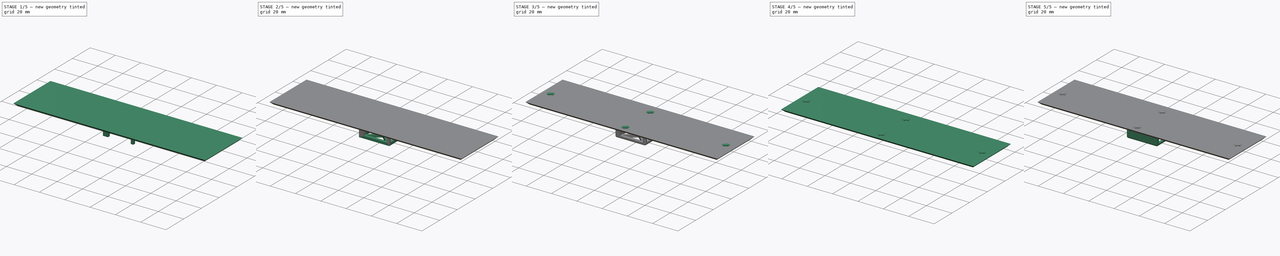
[diagram: build sequence overview — one tinted view per stage of 5, left to right]
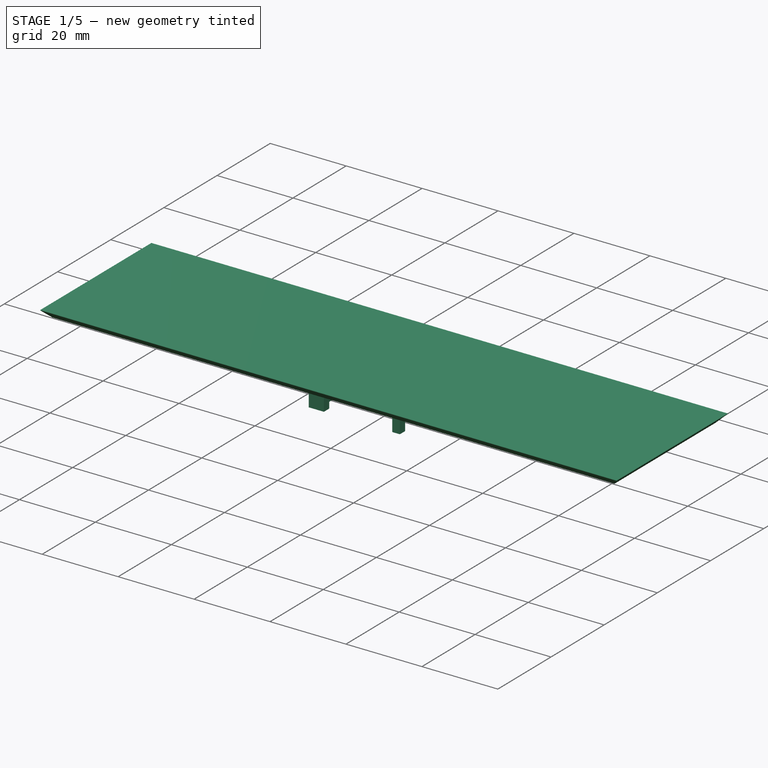
[diagram: stage 1 of 5 — iso view after this stage's code; geometry added in this stage tinted green]
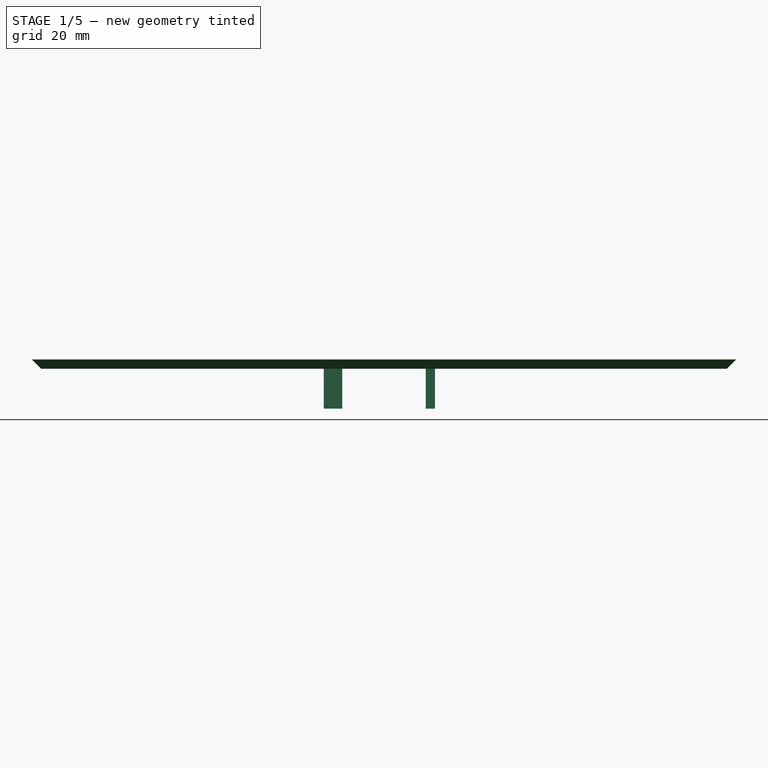
[diagram: stage 1 of 5 — front view after this stage's code; geometry added in this stage tinted green]
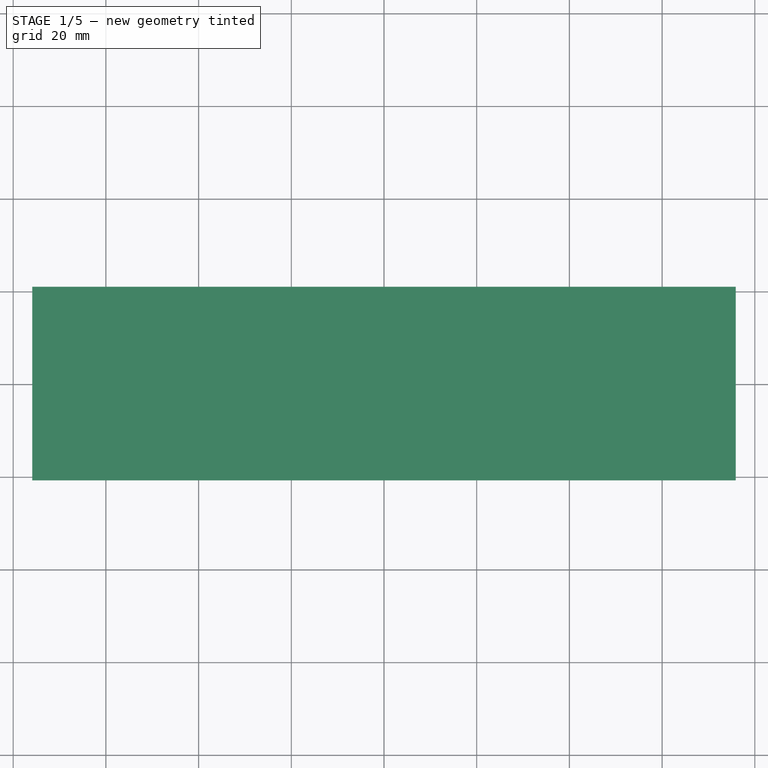
[diagram: stage 1 of 5 — top view after this stage's code; geometry added in this stage tinted green]
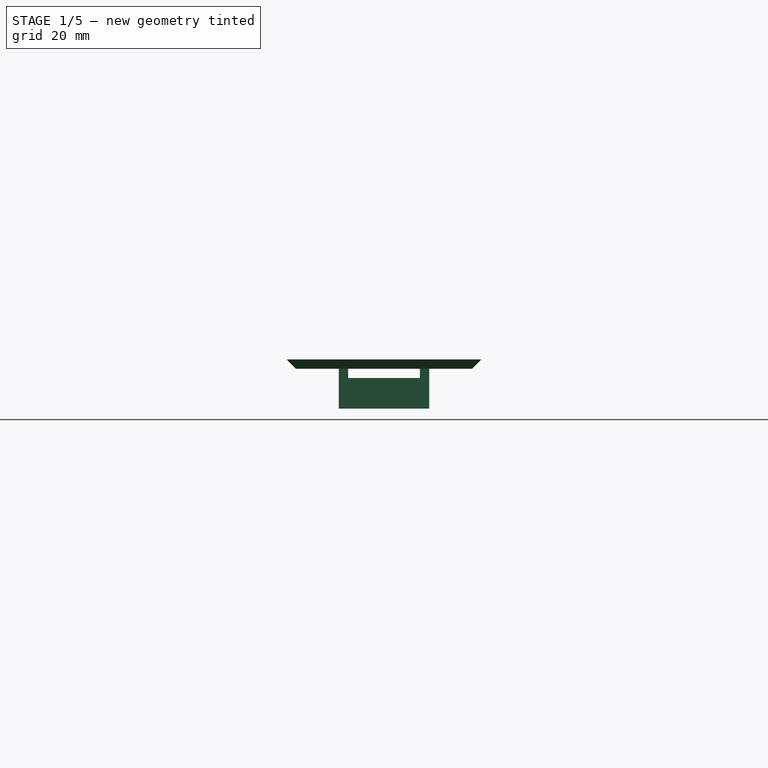
[diagram: stage 1 of 5 — right view after this stage's code; geometry added in this stage tinted green]
FCSTD DOCUMENT  (FreeCAD 0.20R29603 (Git))
Label: Tampa entrada de amostra
License: All rights reserved
LicenseURL: http://en.wikipedia.org/wiki/All_rights_reserved
objects: Sketcher::SketchObject×12, PartDesign::Pocket×7, PartDesign::Pad×5, PartDesign::Chamfer×3, PartDesign::Fillet×3, PartDesign::Body×1
note: 49 computed .brp shape members not serialized (recipe doc carries the construction recipe); baked Part::Feature solids carry a one-line shape summary decoded from their .brp

FEATURE [Sketcher::SketchObject] Sketch
  FullyConstrained = true
  MapMode = 5
  Support = -> [XY_Plane]
  sketch-geometry (5):
    g0: LineSegment StartX=75.9 StartY=-20.9 StartZ=0 EndX=75.9 EndY=20.9 EndZ=0
    g1: LineSegment StartX=75.9 StartY=20.9 StartZ=0 EndX=-75.9 EndY=20.9 EndZ=0
    g2: LineSegment StartX=-75.9 StartY=20.9 StartZ=0 EndX=-75.9 EndY=-20.9 EndZ=0
    g3: LineSegment StartX=-75.9 StartY=-20.9 StartZ=0 EndX=75.9 EndY=-20.9 EndZ=0
    g4: GeomPoint X=0 Y=0 Z=0
  constraints (12):
    c: Coincident(g0,g1)
    c: Coincident(g1,g2)
    c: Coincident(g2,g3)
    c: Coincident(g3,g0)
    c: Horizontal(g1)
    c: Horizontal(g3)
    c: Vertical(g0)
    c: Vertical(g2)
    c: Symmetric(g1,g0,g4)
    c: Coincident(g4,g-1)
    c: DistanceX(g1,g1) = 151.8
    c: DistanceY(g2,g2) = 41.8
FEATURE [PartDesign::Pad] Pad
  Direction = (0,0,1)
  Length = 2
  Length2 = 10
  Profile = -> Sketch
  ReferenceAxis = -> Sketch [N_Axis]
  Type = 0
FEATURE [PartDesign::Chamfer] Chamfer
  Angle = 45
  Base = -> Pad [Edge11,Edge9,Edge6,Edge3]
  BaseFeature = -> Pad
  ChamferType = 0
  FlipDirection = false
  Size = 1.9
  Size2 = 1
  SupportTransform = false
  UseAllEdges = false
FEATURE [Sketcher::SketchObject] Sketch001
  FullyConstrained = true
  MapMode = 5
  Placement = pos=(0,0,0) rot=(1,0,0;3.14159rad)
  Support = -> [Chamfer]
  sketch-geometry (21):
    g0: LineSegment StartX=11 StartY=-7.75 StartZ=0 EndX=11 EndY=7.75 EndZ=0
    g1: LineSegment StartX=11 StartY=7.75 StartZ=0 EndX=-11 EndY=7.75 EndZ=0
    g2: LineSegment StartX=-11 StartY=7.75 StartZ=0 EndX=-11 EndY=-7.75 EndZ=0
    g3: LineSegment StartX=-11 StartY=-7.75 StartZ=0 EndX=11 EndY=-7.75 EndZ=0
    g4: GeomPoint X=0 Y=0 Z=0
    g5: LineSegment StartX=-11 StartY=7.75 StartZ=0 EndX=-9 EndY=7.75 EndZ=0
    g6: LineSegment StartX=-9 StartY=7.75 StartZ=0 EndX=-9 EndY=9.75 EndZ=0
    g7: LineSegment StartX=-9 StartY=9.75 StartZ=0 EndX=-13 EndY=9.75 EndZ=0
    g8: LineSegment StartX=11 StartY=7.75 StartZ=0 EndX=9 EndY=7.75 EndZ=0
    g9: LineSegment StartX=9 StartY=7.75 StartZ=0 EndX=9 EndY=9.75 EndZ=0
    g10: LineSegment StartX=9 StartY=9.75 StartZ=0 EndX=11 EndY=9.75 EndZ=0
    g11: LineSegment StartX=11 StartY=9.75 StartZ=0 EndX=11 EndY=7.75 EndZ=0
    g12: LineSegment StartX=-11 StartY=-7.75 StartZ=0 EndX=-9 EndY=-7.75 EndZ=0
    g13: LineSegment StartX=-9 StartY=-7.75 StartZ=0 EndX=-9 EndY=-9.75 EndZ=0
    g14: LineSegment StartX=-9 StartY=-9.75 StartZ=0 EndX=-13 EndY=-9.75 EndZ=0
    g15: LineSegment StartX=11 StartY=-7.75 StartZ=0 EndX=9 EndY=-7.75 EndZ=0
    g16: LineSegment StartX=9 StartY=-7.75 StartZ=0 EndX=9 EndY=-9.75 EndZ=0
    g17: LineSegment StartX=9 StartY=-9.75 StartZ=0 EndX=11 EndY=-9.75 EndZ=0
    g18: LineSegment StartX=11 StartY=-9.75 StartZ=0 EndX=11 EndY=-7.75 EndZ=0
    g19: LineSegment StartX=-13 StartY=9.75 StartZ=0 EndX=-13 EndY=-9.75 EndZ=0
    g20: LineSegment StartX=-11 StartY=7.75 StartZ=0 EndX=-11 EndY=-7.75 EndZ=0
  constraints (56):
    c: Coincident(g0,g1)
    c: Coincident(g1,g2)
    c: Coincident(g2,g3)
    c: Coincident(g3,g0)
    c: Horizontal(g1)
    c: Horizontal(g3)
    c: Vertical(g0)
    c: Vertical(g2)
    c: Symmetric(g1,g0,g4)
    c: Coincident(g4,g-1)
    c: DistanceY(g0,g0) = 15.5
    c: DistanceX(g1,g1) = 22
    c: Coincident(g5,g6)
    c: Coincident(g6,g7)
    c: Horizontal(g5)
    c: Horizontal(g7)
    c: Vertical(g6)
    c: Coincident(g5,g1)
    c: Coincident(g8,g9)
    c: Coincident(g9,g10)
    c: Coincident(g10,g11)
    c: Coincident(g11,g8)
    c: Horizontal(g8)
    c: Horizontal(g10)
    c: Vertical(g9)
    c: Vertical(g11)
    c: Coincident(g8,g0)
    c: Coincident(g12,g13)
    c: Coincident(g13,g14)
    c: Horizontal(g12)
    c: Horizontal(g14)
    c: Vertical(g13)
    c: Coincident(g12,g2)
    c: Coincident(g15,g16)
    c: Coincident(g16,g17)
    c: Coincident(g17,g18)
    c: Coincident(g18,g15)
    c: Horizontal(g15)
    c: Horizontal(g17)
    c: Vertical(g16)
    c: Vertical(g18)
    c: Coincident(g15,g0)
    c: Equal(g10,g15)
    c: Equal(g15,g12)
    c: Equal(g12,g13)
    c: Equal(g13,g16)
    c: Equal(g16,g9)
    c: Equal(g9,g6)
    c: Vertical(g19)
    c: Coincident(g20,g5)
    c: Coincident(g20,g12)
    c: Equal(g5,g6)
    c: Coincident(g7,g19)
    c: Coincident(g14,g19)
    c: DistanceY(g6,g6) = 2
    c: DistanceX(g14,g12) = 2
FEATURE [PartDesign::Pad] Pad001
  BaseFeature = -> Chamfer
  Direction = (0,0,-1)
  Length = 8.6
  Length2 = 10
  Profile = -> Sketch001
  ReferenceAxis = -> Sketch001 [N_Axis]
  Type = 0
FEATURE [Sketcher::SketchObject] Sketch002
  FullyConstrained = true
  MapMode = 5
  Placement = pos=(-13,0,0) rot=(0.57735,-0.57735,-0.57735;2.0944rad)
  Support = -> [Pad001]
  sketch-geometry (4):
    g0: LineSegment StartX=-7.75 StartY=0 StartZ=0 EndX=7.75 EndY=0 EndZ=0
    g1: LineSegment StartX=7.75 StartY=0 StartZ=0 EndX=7.75 EndY=-2 EndZ=0
    g2: LineSegment StartX=7.75 StartY=-2 StartZ=0 EndX=-7.75 EndY=-2 EndZ=0
    g3: LineSegment StartX=-7.75 StartY=-2 StartZ=0 EndX=-7.75 EndY=0 EndZ=0
  constraints (11):
    c: Coincident(g0,g1)
    c: Coincident(g1,g2)
    c: Coincident(g2,g3)
    c: Coincident(g3,g0)
    c: Horizontal(g0)
    c: Horizontal(g2)
    c: Vertical(g1)
    c: Vertical(g3)
    c: DistanceX(g0,g0) = 15.5
    c: DistanceY(g1,g1) = 2
    c: Symmetric(g0,g0,g-1)
FEATURE [PartDesign::Pocket] Pocket
  BaseFeature = -> Pad001
  Direction = (1,0,0)
  Length = 2
  Length2 = 5
  Profile = -> Sketch002
  ReferenceAxis = -> Sketch002 [N_Axis]
  Type = 0
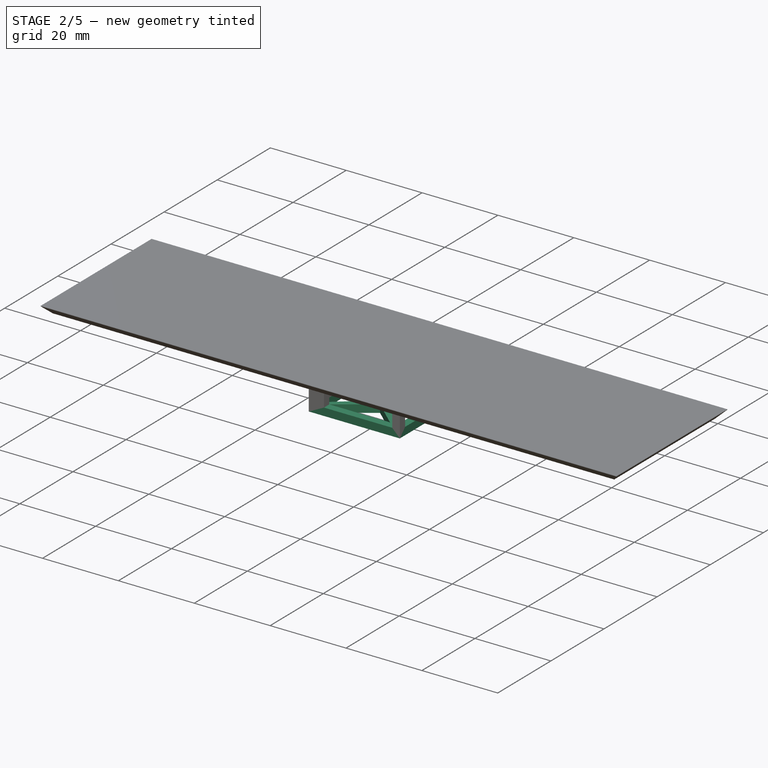
[diagram: stage 2 of 5 — iso view after this stage's code; geometry added in this stage tinted green]
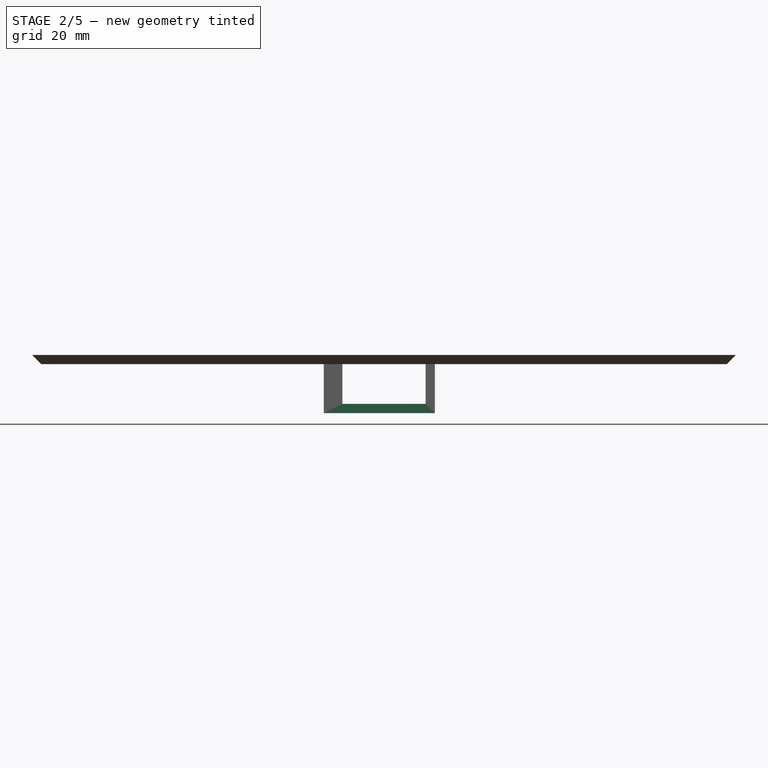
[diagram: stage 2 of 5 — front view after this stage's code; geometry added in this stage tinted green]
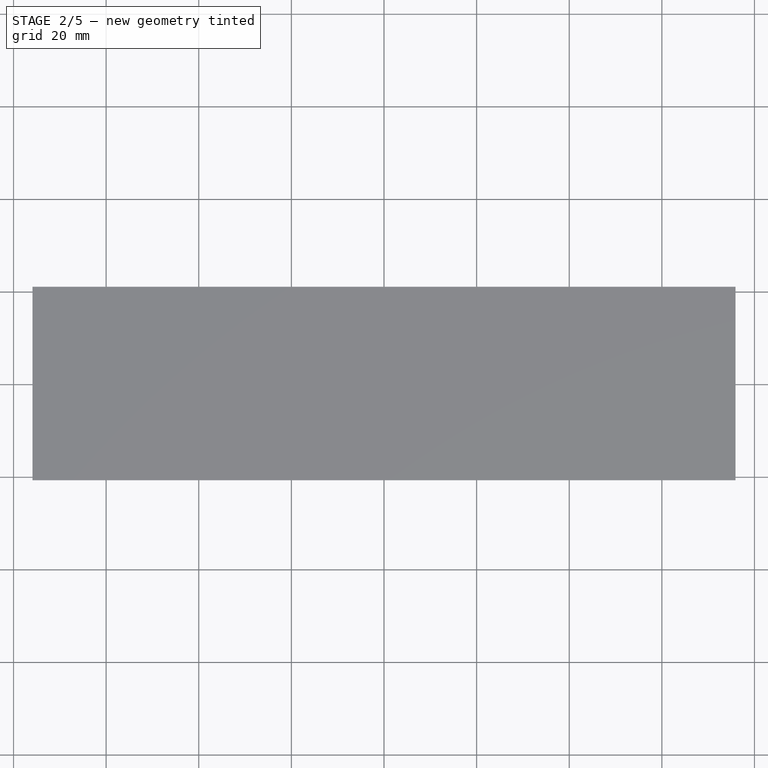
[diagram: stage 2 of 5 — top view after this stage's code; geometry added in this stage tinted green]
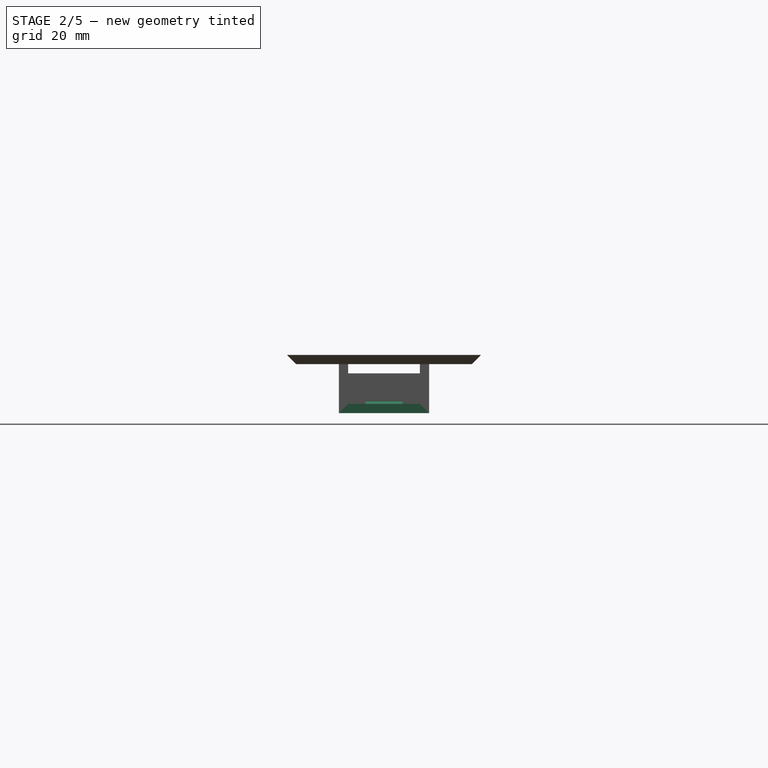
[diagram: stage 2 of 5 — right view after this stage's code; geometry added in this stage tinted green]
FEATURE [Sketcher::SketchObject] Sketch003
  ExternalGeometry = -> [Pocket]
  FullyConstrained = true
  MapMode = 5
  Placement = pos=(0,0,-8.6) rot=(1,0,0;3.14159rad)
  Support = -> [Pocket]
  sketch-geometry (22):
    g0: LineSegment StartX=-13 StartY=9.75 StartZ=0 EndX=11 EndY=9.75 EndZ=0
    g1: LineSegment StartX=11 StartY=-9.75 StartZ=0 EndX=-13 EndY=-9.75 EndZ=0
    g2: LineSegment StartX=-13 StartY=-9.75 StartZ=0 EndX=-13 EndY=9.75 EndZ=0
    g3: LineSegment StartX=-11 StartY=7.75 StartZ=0 EndX=-1.5 EndY=0 EndZ=0
    g4: LineSegment StartX=-1.5 StartY=0 StartZ=0 EndX=-11 EndY=-7.75 EndZ=0
    g5: LineSegment StartX=-11 StartY=-7.75 StartZ=0 EndX=-11 EndY=7.75 EndZ=0
    g6: LineSegment StartX=9 StartY=7.75 StartZ=0 EndX=1.5 EndY=9e-16 EndZ=0
    g7: LineSegment StartX=1.5 StartY=9e-16 StartZ=0 EndX=9 EndY=-7.75 EndZ=0
    g8: LineSegment StartX=7 StartY=-7.75 StartZ=0 EndX=-1.8e-15 EndY=-1.5 EndZ=0
    g9: LineSegment StartX=-1.8e-15 StartY=-1.5 StartZ=0 EndX=-9 EndY=-7.75 EndZ=0
    g10: LineSegment StartX=-9 StartY=-7.75 StartZ=0 EndX=9 EndY=-7.75 EndZ=0
    g11: LineSegment StartX=9 StartY=7.75 StartZ=0 EndX=-9 EndY=7.75 EndZ=0
    g12: LineSegment StartX=-9 StartY=7.75 StartZ=0 EndX=0 EndY=1.5 EndZ=0
    g13: LineSegment StartX=-1.5 StartY=0 StartZ=0 EndX=1.5 EndY=9e-16 EndZ=0
    g14: LineSegment StartX=0 StartY=1.5 StartZ=0 EndX=-1.8e-15 EndY=-1.5 EndZ=0
    g15: LineSegment StartX=7 StartY=-7.75 StartZ=0 EndX=9 EndY=-7.75 EndZ=0
    g16: LineSegment StartX=0 StartY=1.5 StartZ=0 EndX=7 EndY=7.75 EndZ=0
    g17: LineSegment StartX=7 StartY=7.75 StartZ=0 EndX=9 EndY=7.75 EndZ=0
    g18: LineSegment StartX=-9 StartY=7.75 StartZ=0 EndX=7 EndY=7.75 EndZ=0
    g19: LineSegment StartX=7 StartY=-7.75 StartZ=0 EndX=-9 EndY=-7.75 EndZ=0
    g20: LineSegment StartX=9 StartY=7.75 StartZ=0 EndX=9 EndY=-7.75 EndZ=0
    g21: LineSegment StartX=11 StartY=-9.75 StartZ=0 EndX=11 EndY=9.75 EndZ=0
  constraints (49):
    c: Coincident(g1,g2)
    c: Coincident(g2,g0)
    c: Horizontal(g1)
    c: Vertical(g2)
    c: Coincident(g0,g-3)
    c: Coincident(g-8,g3)
    c: PointOnObject(g3,g-1)
    c: Coincident(g3,g4)
    c: Coincident(g4,g-9)
    c: Coincident(g4,g5)
    c: Coincident(g5,g3)
    c: Coincident(g6,g7)
    c: PointOnObject(g8,g-2)
    c: Coincident(g8,g9)
    c: Coincident(g9,g-9)
    c: Coincident(g9,g10)
    c: Coincident(g-10,g11)
    c: Coincident(g11,g-8)
    c: Coincident(g11,g12)
    c: Coincident(g13,g3)
    c: Coincident(g13,g6)
    c: Coincident(g14,g12)
    c: Coincident(g14,g8)
    c: Equal(g13,g14)
    c: Symmetric(g3,g6,g-1)
    c: Symmetric(g12,g8,g-1)
    c: DistanceX(g13,g13) = 3
    c: Coincident(g1,g-5)
    c: Coincident(g0,g-4)
    c: Coincident(g10,g-7)
    c: PointOnObject(g8,g10)
    c: Coincident(g7,g10)
    c: Coincident(g6,g11)
    c: Coincident(g15,g8)
    c: Equal(g15,g-9)
    c: Coincident(g15,g7)
    c: Coincident(g16,g12)
    c: Coincident(g17,g16)
    c: Horizontal(g17)
    c: Equal(g17,g-9)
    c: Coincident(g17,g6)
    c: Coincident(g18,g12)
    c: Coincident(g18,g16)
    c: Coincident(g19,g8)
    c: Coincident(g19,g9)
    c: Coincident(g20,g6)
    c: Coincident(g20,g7)
    c: Coincident(g21,g1)
    c: Coincident(g21,g0)
FEATURE [PartDesign::Pad] Pad002
  BaseFeature = -> Pocket
  Direction = (0,0,-1)
  Length = 2
  Length2 = 10
  Profile = -> Sketch003
  ReferenceAxis = -> Sketch003 [N_Axis]
  Refine = true
  Type = 0
FEATURE [Sketcher::SketchObject] Sketch004
  ExternalGeometry = -> [Pad002]
  FullyConstrained = true
  MapMode = 5
  Placement = pos=(11,0,-1.5e-15) rot=(0.57735,0.57735,0.57735;2.0944rad)
  Support = -> [Pad002]
  sketch-geometry (5):
    g0: LineSegment StartX=4 StartY=-8 StartZ=0 EndX=4 EndY=-8.6 EndZ=0
    g1: LineSegment StartX=4 StartY=-8.6 StartZ=0 EndX=-4 EndY=-8.6 EndZ=0
    g2: LineSegment StartX=-4 StartY=-8.6 StartZ=0 EndX=-4 EndY=-8 EndZ=0
    g3: LineSegment StartX=-4 StartY=-8 StartZ=0 EndX=4 EndY=-8 EndZ=0
    g4: GeomPoint X=0 Y=-8.3 Z=0
  constraints (14):
    c: DistanceY(g-4,g-4) = 8.6
    c: Coincident(g0,g1)
    c: Coincident(g1,g2)
    c: Coincident(g2,g3)
    c: Coincident(g3,g0)
    c: Horizontal(g1)
    c: Horizontal(g3)
    c: Vertical(g0)
    c: Vertical(g2)
    c: Symmetric(g1,g0,g4)
    c: PointOnObject(g4,g-2)
    c: PointOnObject(g0,g-3)
    c: DistanceY(g0,g0) = 0.6
    c: DistanceX(g3,g3) = 8
FEATURE [PartDesign::Pad] Pad003
  BaseFeature = -> Pad002
  Direction = (1,1e-16,-1e-16)
  Length = 1.25
  Length2 = -0.75
  Profile = -> Sketch004
  ReferenceAxis = -> Sketch004 [N_Axis]
  Reversed = true
  Type = 4
FEATURE [PartDesign::Chamfer] Chamfer001
  Angle = 53
  Base = -> Pad003 [Edge111,Edge109]
  BaseFeature = -> Pad003
  ChamferType = 2
  FlipDirection = true
  Size = 0.55
  Size2 = 1
  SupportTransform = false
  UseAllEdges = false
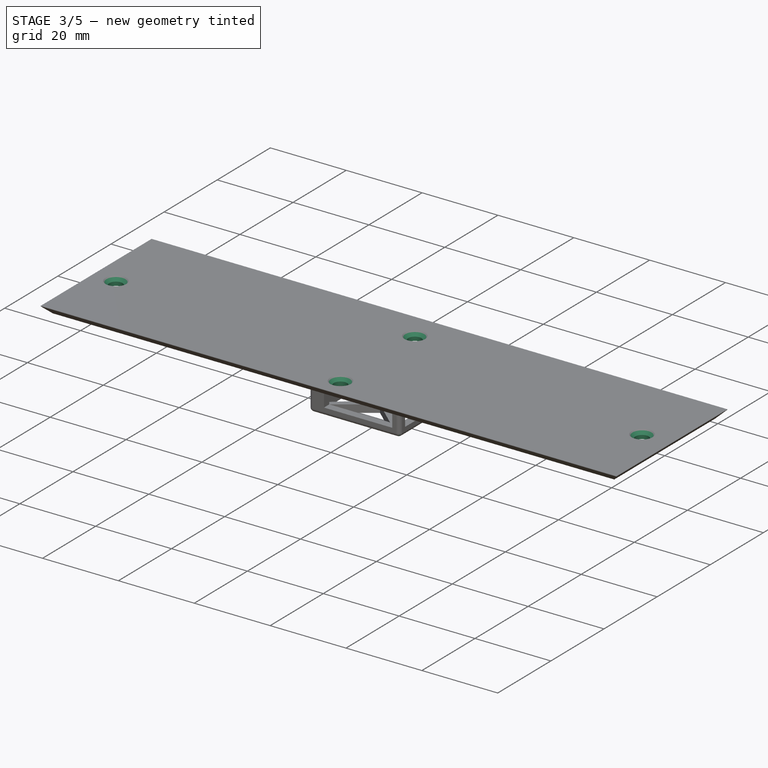
[diagram: stage 3 of 5 — iso view after this stage's code; geometry added in this stage tinted green]
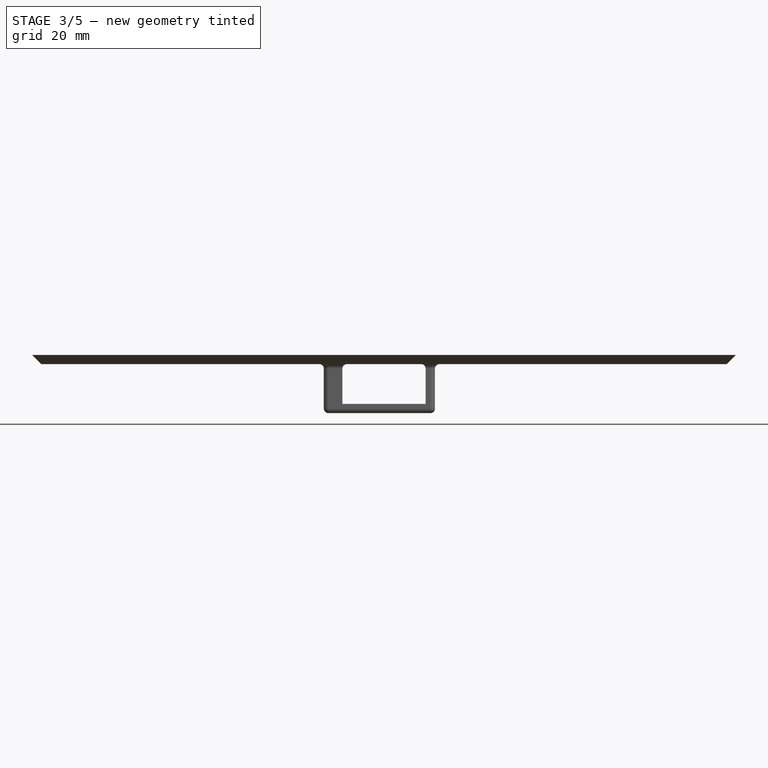
[diagram: stage 3 of 5 — front view after this stage's code; geometry added in this stage tinted green]
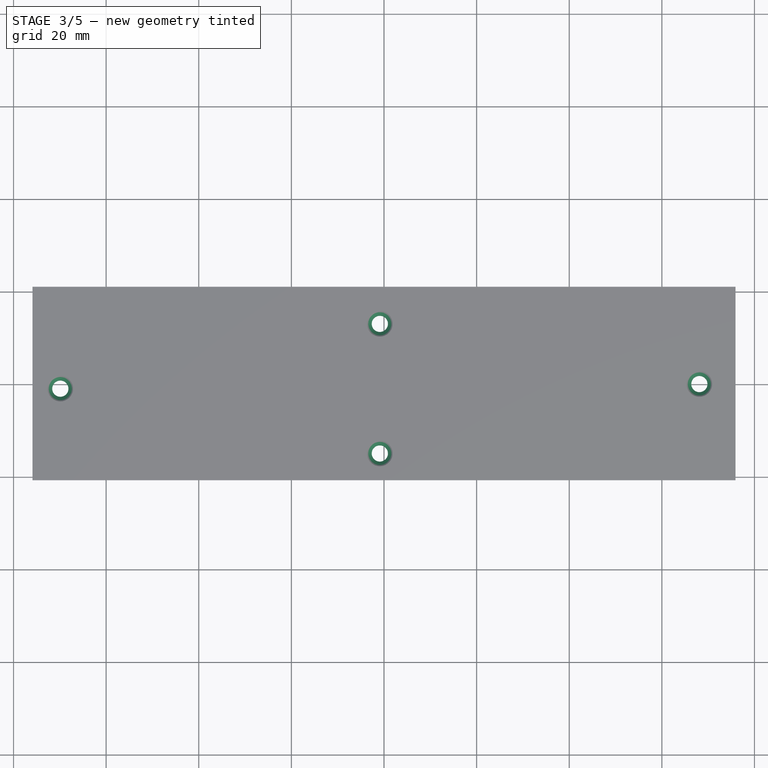
[diagram: stage 3 of 5 — top view after this stage's code; geometry added in this stage tinted green]
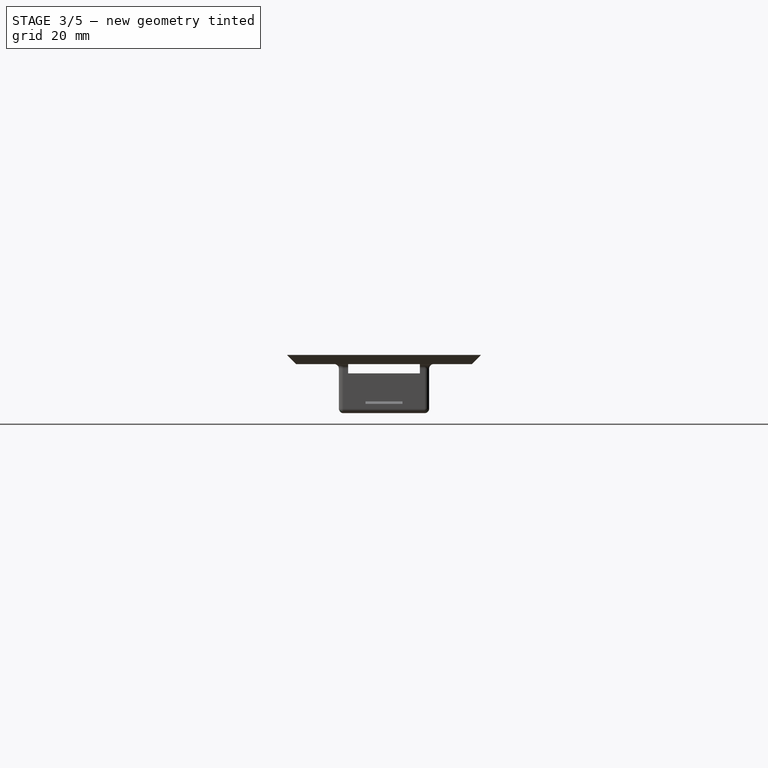
[diagram: stage 3 of 5 — right view after this stage's code; geometry added in this stage tinted green]
FEATURE [PartDesign::Fillet] Fillet
  Base = -> Chamfer001 [Edge57,Edge33,Edge58,Edge42,Edge56,Edge31,Edge54,Edge53,Edge55,Edge49,Edge50,Edge51,Edge28,Edge30,Edge79,Edge62]
  BaseFeature = -> Chamfer001
  Radius = 1
  SupportTransform = false
  UseAllEdges = false
FEATURE [PartDesign::Fillet] Fillet001
  Base = -> Fillet [Edge64]
  BaseFeature = -> Fillet
  Radius = 1
  SupportTransform = false
  UseAllEdges = false
FEATURE [Sketcher::SketchObject] Sketch005
  ExternalGeometry = -> [Fillet001]
  FullyConstrained = true
  MapMode = 5
  Placement = pos=(0,0,2) rot=(0,0,1;0rad)
  Support = -> [Fillet001]
  sketch-geometry (7):
    g0: Circle CenterX=-69.9 CenterY=-1.1 CenterZ=0 NormalX=0 NormalY=0 NormalZ=1 AngleXU=0 Radius=1.75
    g1: Circle CenterX=68.1 CenterY=-0.1 CenterZ=0 NormalX=0 NormalY=0 NormalZ=1 AngleXU=0 Radius=1.75
    g2: Circle CenterX=-0.9 CenterY=-15.1 CenterZ=0 NormalX=0 NormalY=0 NormalZ=1 AngleXU=0 Radius=1.75
    g3: Circle CenterX=-0.9 CenterY=12.9 CenterZ=0 NormalX=0 NormalY=0 NormalZ=1 AngleXU=0 Radius=1.75
    g4: LineSegment StartX=-69.9 StartY=-1.1 StartZ=0 EndX=68.1 EndY=-1.1 EndZ=0
    g5: LineSegment StartX=-0.9 StartY=12.9 StartZ=0 EndX=-0.9 EndY=-15.1 EndZ=0
    g6: LineSegment StartX=68.1 StartY=-0.1 StartZ=0 EndX=68.1 EndY=-1.1 EndZ=0
  constraints (19):
    c: Coincident(g4,g0)
    c: Horizontal(g4)
    c: Coincident(g5,g3)
    c: Coincident(g5,g2)
    c: Vertical(g5)
    c: Equal(g3,g2)
    c: Equal(g2,g0)
    c: Equal(g0,g1)
    c: Diameter(g3) = 3.5
    c: DistanceX(g4,g4) = 138
    c: Coincident(g6,g4)
    c: Vertical(g6)
    c: DistanceY(g6,g6) = 1
    c: Coincident(g1,g6)
    c: DistanceX(g-3,g0) = 6
    c: DistanceY(g0,g-3) = 22
    c: DistanceY(g5,g5) = 28
    c: DistanceY(g3,g-3) = 8
    c: DistanceX(g-3,g3) = 75
FEATURE [PartDesign::Pocket] Pocket001
  BaseFeature = -> Fillet001
  Direction = (0,0,-1)
  Length = 3
  Length2 = 5
  Profile = -> Sketch005
  ReferenceAxis = -> Sketch005 [N_Axis]
  Type = 0
FEATURE [PartDesign::Chamfer] Chamfer002
  Angle = 45
  Base = -> Pocket001 [Edge198,Edge188,Edge186,Edge196]
  BaseFeature = -> Pocket001
  ChamferType = 0
  FlipDirection = false
  Size = 1
  Size2 = 1
  SupportTransform = false
  UseAllEdges = false
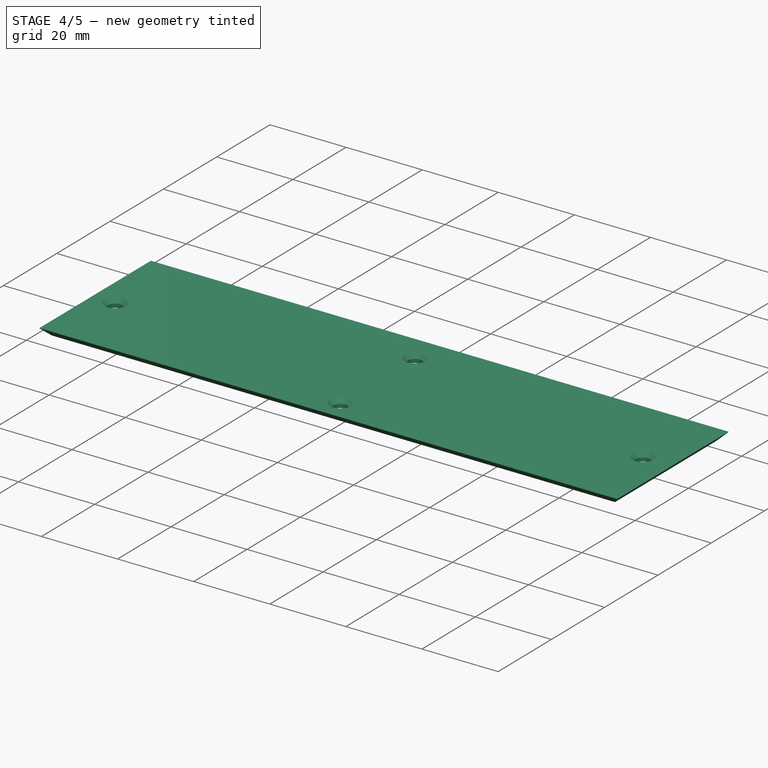
[diagram: stage 4 of 5 — iso view after this stage's code; geometry added in this stage tinted green]
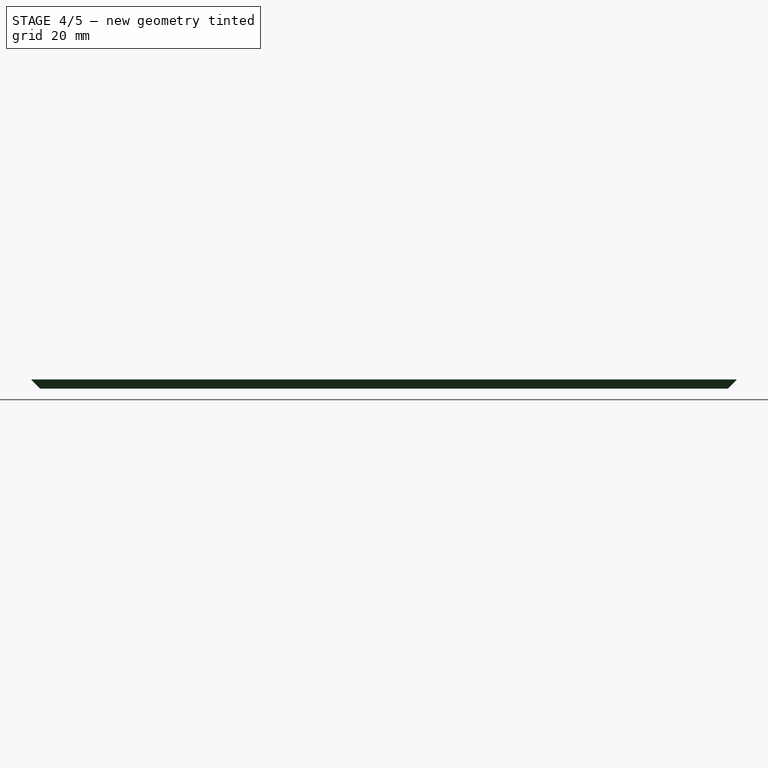
[diagram: stage 4 of 5 — front view after this stage's code; geometry added in this stage tinted green]
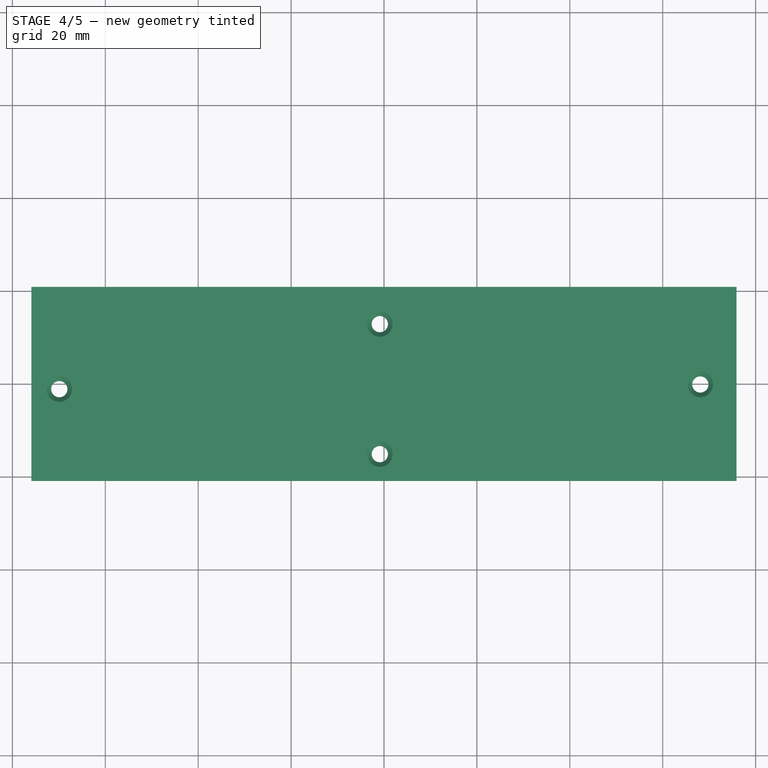
[diagram: stage 4 of 5 — top view after this stage's code; geometry added in this stage tinted green]
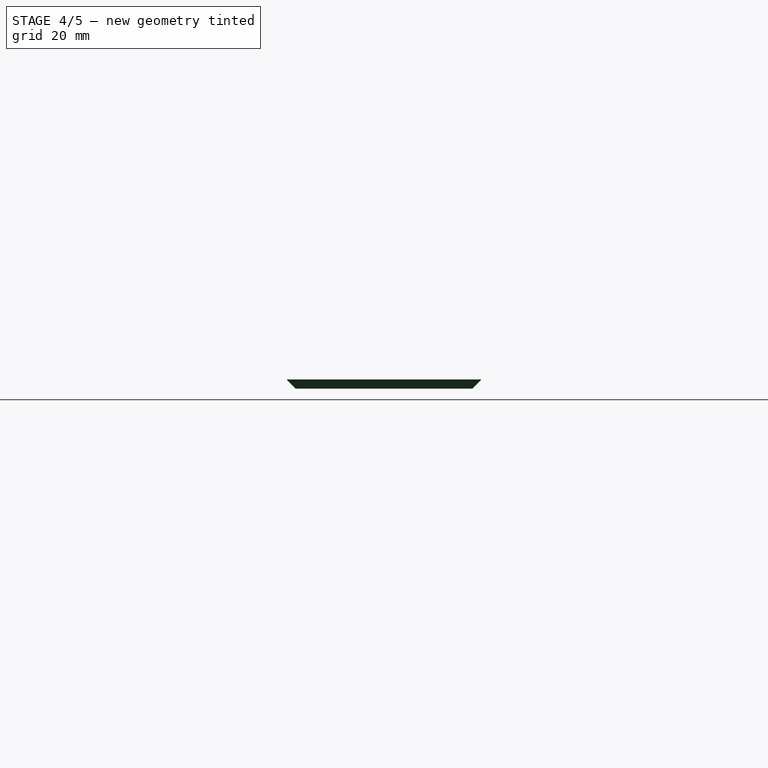
[diagram: stage 4 of 5 — right view after this stage's code; geometry added in this stage tinted green]
FEATURE [Sketcher::SketchObject] Sketch006
  ExternalGeometry = -> [Chamfer002]
  FullyConstrained = true
  MapMode = 5
  Placement = pos=(11,0,-1.5e-15) rot=(0.57735,0.57735,0.57735;2.0944rad)
  Support = -> [Chamfer002]
  sketch-geometry (4):
    g0: LineSegment StartX=7.75 StartY=0 StartZ=0 EndX=-7.75 EndY=0 EndZ=0
    g1: LineSegment StartX=-7.75 StartY=0 StartZ=0 EndX=-7.75 EndY=-8.6 EndZ=0
    g2: LineSegment StartX=-7.75 StartY=-8.6 StartZ=0 EndX=7.75 EndY=-8.6 EndZ=0
    g3: LineSegment StartX=7.75 StartY=-8.6 StartZ=0 EndX=7.75 EndY=0 EndZ=0
  constraints (10):
    c: Coincident(g0,g1)
    c: Coincident(g1,g2)
    c: Coincident(g2,g3)
    c: Coincident(g3,g0)
    c: Horizontal(g0)
    c: Horizontal(g2)
    c: Vertical(g1)
    c: Vertical(g3)
    c: Coincident(g0,g-4)
    c: Coincident(g1,g-3)
FEATURE [PartDesign::Pocket] Pocket002
  BaseFeature = -> Chamfer002
  Direction = (-1,-1e-16,1e-16)
  Length = 5
  Length2 = 5
  Profile = -> Sketch006
  ReferenceAxis = -> Sketch006 [N_Axis]
  Type = 0
FEATURE [Sketcher::SketchObject] Sketch007
  ExternalGeometry = -> [Pocket002]
  FullyConstrained = true
  MapMode = 5
  Placement = pos=(0,0,-10.6) rot=(1,0,0;3.14159rad)
  Support = -> [Pocket002]
  sketch-geometry (4):
    g0: LineSegment StartX=-11 StartY=7.75 StartZ=0 EndX=9 EndY=7.75 EndZ=0
    g1: LineSegment StartX=9 StartY=7.75 StartZ=0 EndX=9 EndY=-7.75 EndZ=0
    g2: LineSegment StartX=9 StartY=-7.75 StartZ=0 EndX=-11 EndY=-7.75 EndZ=0
    g3: LineSegment StartX=-11 StartY=-7.75 StartZ=0 EndX=-11 EndY=7.75 EndZ=0
  constraints (10):
    c: Coincident(g0,g1)
    c: Coincident(g1,g2)
    c: Coincident(g2,g3)
    c: Coincident(g3,g0)
    c: Horizontal(g0)
    c: Horizontal(g2)
    c: Vertical(g1)
    c: Vertical(g3)
    c: Coincident(g0,g-3)
    c: Coincident(g1,g-4)
FEATURE [PartDesign::Pocket] Pocket003
  BaseFeature = -> Pocket002
  Direction = (0,0,1)
  Length = 5
  Length2 = 5
  Profile = -> Sketch007
  ReferenceAxis = -> Sketch007 [N_Axis]
  Refine = true
  Type = 0
FEATURE [Sketcher::SketchObject] Sketch008
  ExternalGeometry = -> [Pocket003]
  FullyConstrained = true
  MapMode = 5
  Placement = pos=(0,0,-10.6) rot=(1,0,0;3.14159rad)
  Support = -> [Pocket003]
  sketch-geometry (4):
    g0: LineSegment StartX=-14 StartY=10.75 StartZ=0 EndX=12 EndY=10.75 EndZ=0
    g1: LineSegment StartX=12 StartY=10.75 StartZ=0 EndX=12 EndY=-10.75 EndZ=0
    g2: LineSegment StartX=12 StartY=-10.75 StartZ=0 EndX=-14 EndY=-10.75 EndZ=0
    g3: LineSegment StartX=-14 StartY=-10.75 StartZ=0 EndX=-14 EndY=10.75 EndZ=0
  constraints (12):
    c: Coincident(g0,g1)
    c: Coincident(g1,g2)
    c: Coincident(g2,g3)
    c: Coincident(g3,g0)
    c: Horizontal(g0)
    c: Horizontal(g2)
    c: Vertical(g1)
    c: Vertical(g3)
    c: PointOnObject(g-6,g1)
    c: PointOnObject(g-4,g2)
    c: PointOnObject(g-5,g3)
    c: PointOnObject(g-3,g0)
FEATURE [PartDesign::Pocket] Pocket004
  BaseFeature = -> Pocket003
  Direction = (0,0,1)
  Length = 10.6
  Length2 = 5
  Profile = -> Sketch008
  ReferenceAxis = -> Sketch008 [N_Axis]
  Refine = true
  Type = 0
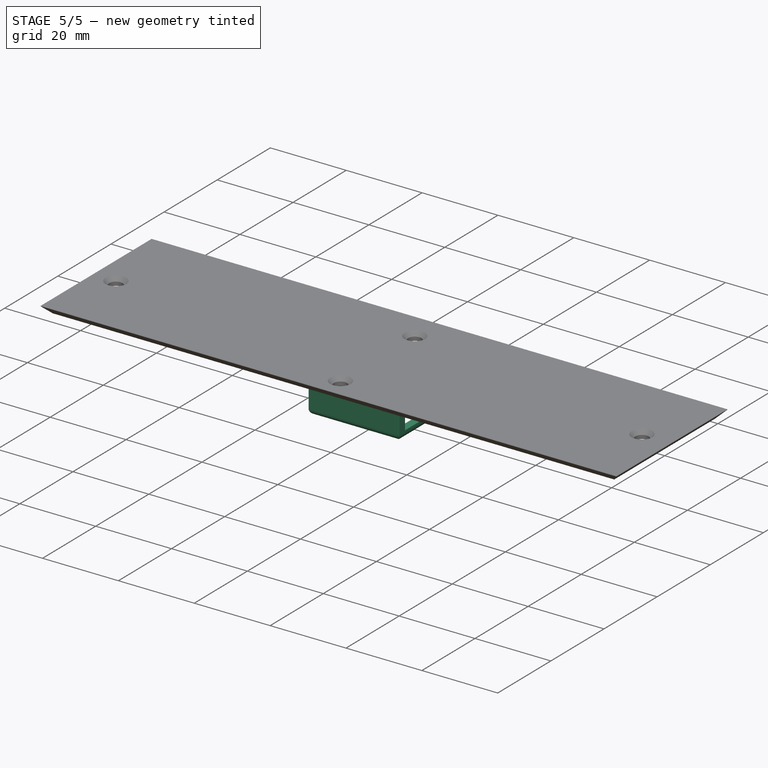
[diagram: stage 5 of 5 — iso view after this stage's code; geometry added in this stage tinted green]
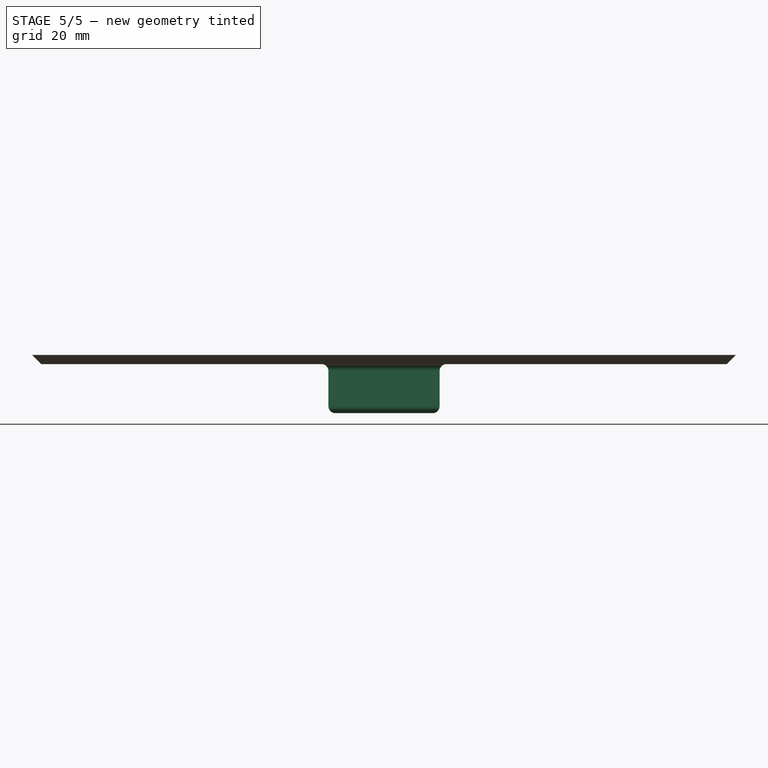
[diagram: stage 5 of 5 — front view after this stage's code; geometry added in this stage tinted green]
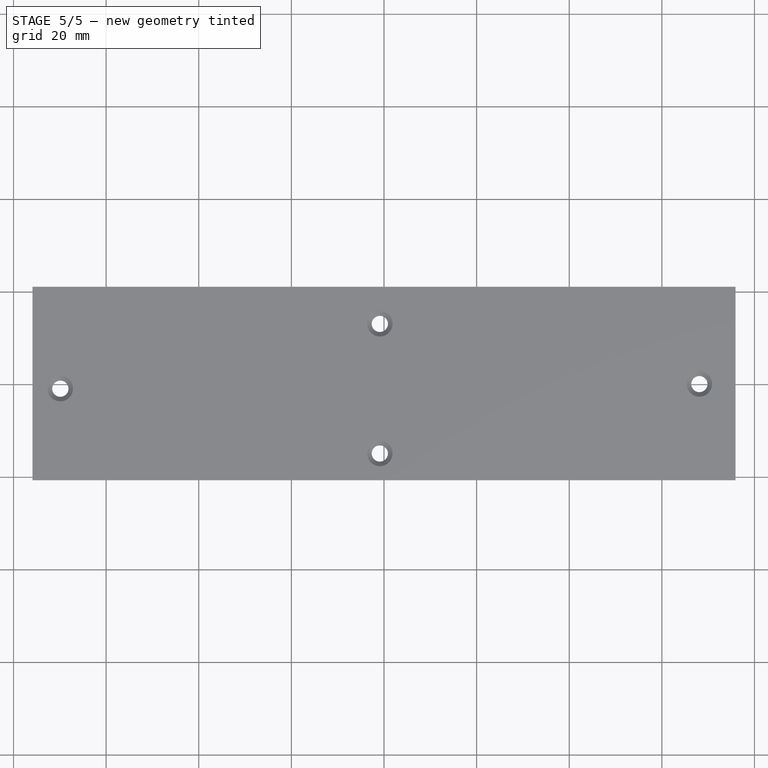
[diagram: stage 5 of 5 — top view after this stage's code; geometry added in this stage tinted green]
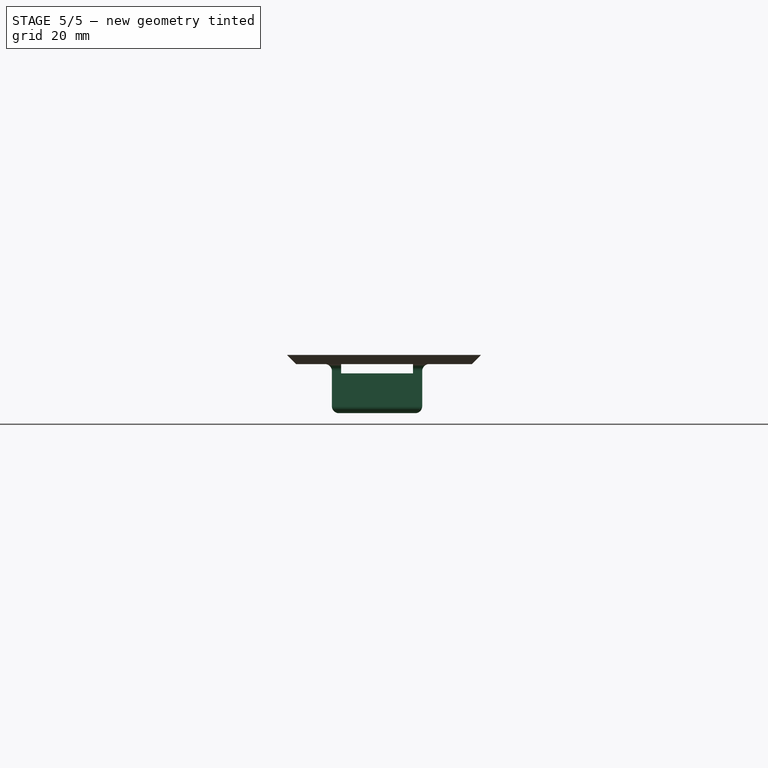
[diagram: stage 5 of 5 — right view after this stage's code; geometry added in this stage tinted green]
FEATURE [Sketcher::SketchObject] Sketch009
  FullyConstrained = true
  MapMode = 5
  Placement = pos=(0,0,0) rot=(1,0,0;3.14159rad)
  Support = -> [Pocket004]
  sketch-geometry (10):
    g0: LineSegment StartX=-12 StartY=-8.25 StartZ=0 EndX=-12 EndY=11.25 EndZ=0
    g1: LineSegment StartX=-12 StartY=11.25 StartZ=0 EndX=12 EndY=11.25 EndZ=0
    g2: LineSegment StartX=12 StartY=11.25 StartZ=0 EndX=12 EndY=-8.25 EndZ=0
    g3: LineSegment StartX=12 StartY=-8.25 StartZ=0 EndX=-12 EndY=-8.25 EndZ=0
    g4: GeomPoint X=0 Y=1.5 Z=0
    g5: LineSegment StartX=10 StartY=-6.25 StartZ=0 EndX=10 EndY=9.25 EndZ=0
    g6: LineSegment StartX=10 StartY=9.25 StartZ=0 EndX=-10 EndY=9.25 EndZ=0
    g7: LineSegment StartX=-10 StartY=9.25 StartZ=0 EndX=-10 EndY=-6.25 EndZ=0
    g8: LineSegment StartX=-10 StartY=-6.25 StartZ=0 EndX=10 EndY=-6.25 EndZ=0
    g9: GeomPoint X=0 Y=1.5 Z=0
  constraints (25):
    c: Coincident(g0,g1)
    c: Coincident(g1,g2)
    c: Coincident(g2,g3)
    c: Coincident(g3,g0)
    c: Horizontal(g1)
    c: Horizontal(g3)
    c: Vertical(g0)
    c: Vertical(g2)
    c: Symmetric(g1,g0,g4)
    c: PointOnObject(g4,g-2)
    c: DistanceY(g-1,g4) = 1.5
    c: Coincident(g5,g6)
    c: Coincident(g6,g7)
    c: Coincident(g7,g8)
    c: Coincident(g8,g5)
    c: Horizontal(g6)
    c: Horizontal(g8)
    c: Vertical(g5)
    c: Vertical(g7)
    c: Symmetric(g6,g5,g9)
    c: Coincident(g9,g4)
    c: DistanceY(g2,g2) = 19.5
    c: DistanceX(g3,g3) = 24
    c: DistanceY(g5,g5) = 15.5
    c: DistanceX(g8,g8) = 20
FEATURE [PartDesign::Pad] Pad004
  BaseFeature = -> Pocket004
  Direction = (0,0,-1)
  Length = 10.6
  Length2 = 10
  Profile = -> Sketch009
  ReferenceAxis = -> Sketch009 [N_Axis]
  Type = 0
FEATURE [Sketcher::SketchObject] Sketch010
  ExternalGeometry = -> [Pad004]
  FullyConstrained = true
  MapMode = 5
  Placement = pos=(12,0,0) rot=(0.57735,0.57735,0.57735;2.0944rad)
  Support = -> [Pad004]
  sketch-geometry (5):
    g0: LineSegment StartX=-9.25 StartY=0 StartZ=0 EndX=6.25 EndY=0 EndZ=0
    g1: LineSegment StartX=6.25 StartY=0 StartZ=0 EndX=6.25 EndY=-8.6 EndZ=0
    g2: LineSegment StartX=6.25 StartY=-8.6 StartZ=0 EndX=-9.25 EndY=-8.6 EndZ=0
    g3: LineSegment StartX=-9.25 StartY=-8.6 StartZ=0 EndX=-9.25 EndY=0 EndZ=0
    g4: LineSegment StartX=-1.5 StartY=-8.6 StartZ=0 EndX=-1.5 EndY=-10.6 EndZ=0
  constraints (14):
    c: Coincident(g0,g1)
    c: Coincident(g1,g2)
    c: Coincident(g2,g3)
    c: Coincident(g3,g0)
    c: Horizontal(g0)
    c: Horizontal(g2)
    c: Vertical(g1)
    c: Vertical(g3)
    c: PointOnObject(g0,g-4)
    c: DistanceY(g1,g1) = 8.6
    c: DistanceX(g2,g2) = 15.5
    c: Vertical(g4)
    c: Symmetric(g2,g1,g4)
    c: Symmetric(g-3,g-3,g4)
FEATURE [PartDesign::Pocket] Pocket005
  BaseFeature = -> Pad004
  Direction = (-1,0,0)
  Length = 5
  Length2 = 5
  Profile = -> Sketch010
  ReferenceAxis = -> Sketch010 [N_Axis]
  Type = 0
FEATURE [Sketcher::SketchObject] Sketch011
  ExternalGeometry = -> [Pocket005]
  FullyConstrained = true
  MapMode = 5
  Placement = pos=(-10,0,0) rot=(0.57735,0.57735,0.57735;2.0944rad)
  Support = -> [Pocket005]
  sketch-geometry (4):
    g0: LineSegment StartX=-9.25 StartY=0 StartZ=0 EndX=6.25 EndY=0 EndZ=0
    g1: LineSegment StartX=6.25 StartY=0 StartZ=0 EndX=6.25 EndY=-2 EndZ=0
    g2: LineSegment StartX=6.25 StartY=-2 StartZ=0 EndX=-9.25 EndY=-2 EndZ=0
    g3: LineSegment StartX=-9.25 StartY=-2 StartZ=0 EndX=-9.25 EndY=0 EndZ=0
  constraints (11):
    c: Coincident(g0,g1)
    c: Coincident(g1,g2)
    c: Coincident(g2,g3)
    c: Coincident(g3,g0)
    c: Horizontal(g0)
    c: Horizontal(g2)
    c: Vertical(g1)
    c: Vertical(g3)
    c: Coincident(g0,g-3)
    c: PointOnObject(g1,g-4)
    c: DistanceY(g1,g1) = 2
FEATURE [PartDesign::Pocket] Pocket006
  BaseFeature = -> Pocket005
  Direction = (-1,0,0)
  Length = 5
  Length2 = 5
  Profile = -> Sketch011
  ReferenceAxis = -> Sketch011 [N_Axis]
  Refine = true
  Type = 0
FEATURE [PartDesign::Fillet] Fillet002
  Base = -> Pocket006 [Edge46,Edge47,Edge48,Edge41,Edge42,Edge61,Edge62,Edge53,Edge56,Edge44]
  BaseFeature = -> Pocket006
  Radius = 1.5
  SupportTransform = false
  UseAllEdges = false
FEATURE [PartDesign::Body] Body
  Group = -> [Sketch,Pad,Chamfer,Sketch001,Pad001,Sketch002,Pocket,Sketch003,Pad002,Sketch004,Pad003,Chamfer001,Fillet,Fillet001,Sketch005,Pocket001,Chamfer002,Sketch006,Pocket002,Sketch007,Pocket003,Sketch008,Pocket004,Sketch009,Pad004,Sketch010,Pocket005,Sketch011,Pocket006,Fillet002]
  Origin = -> Origin
  Tip = -> Fillet002
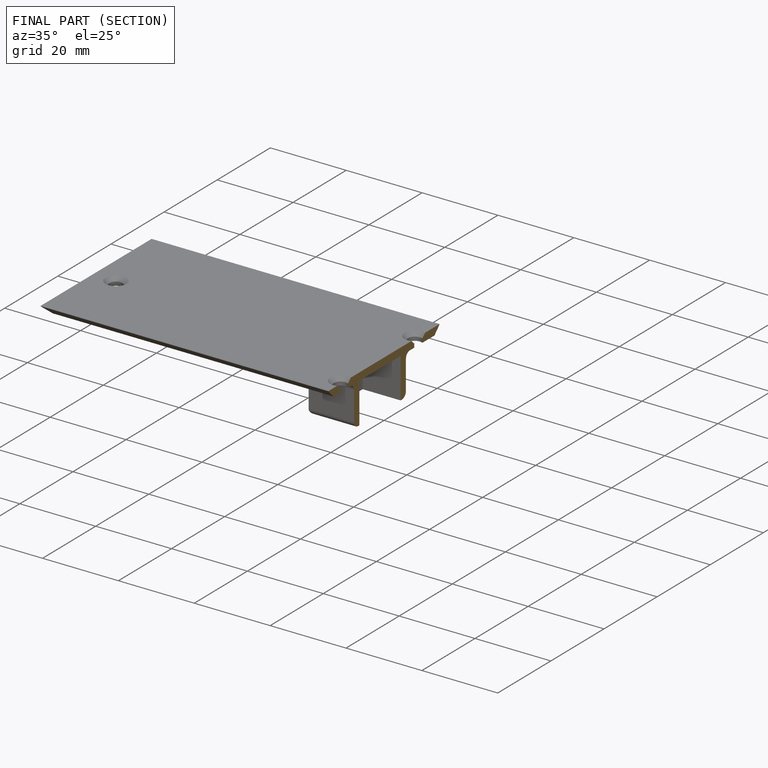
[diagram: finished part — half-section view (interior)]
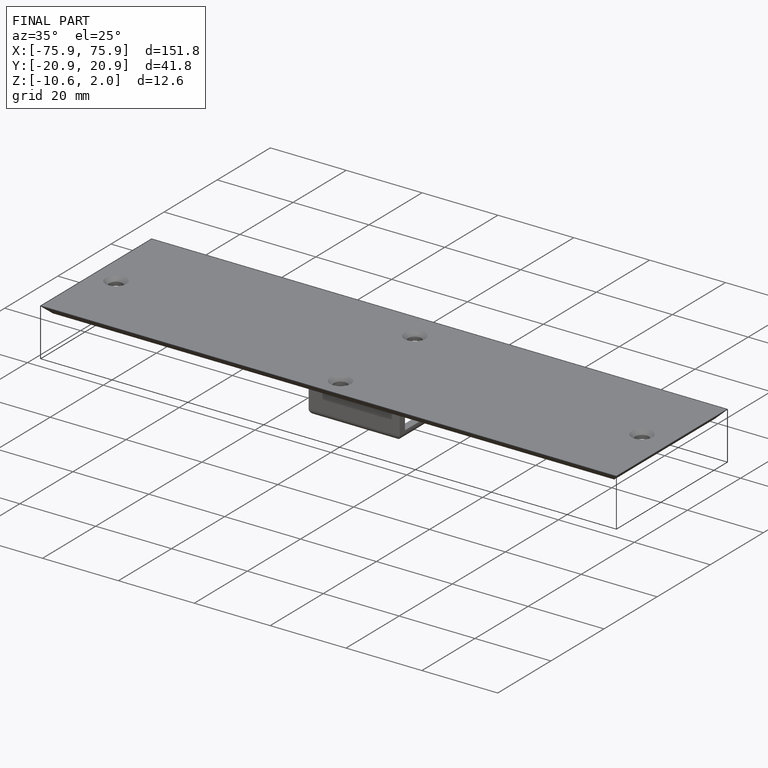
[diagram: finished part — iso view with bounding-box wireframe]
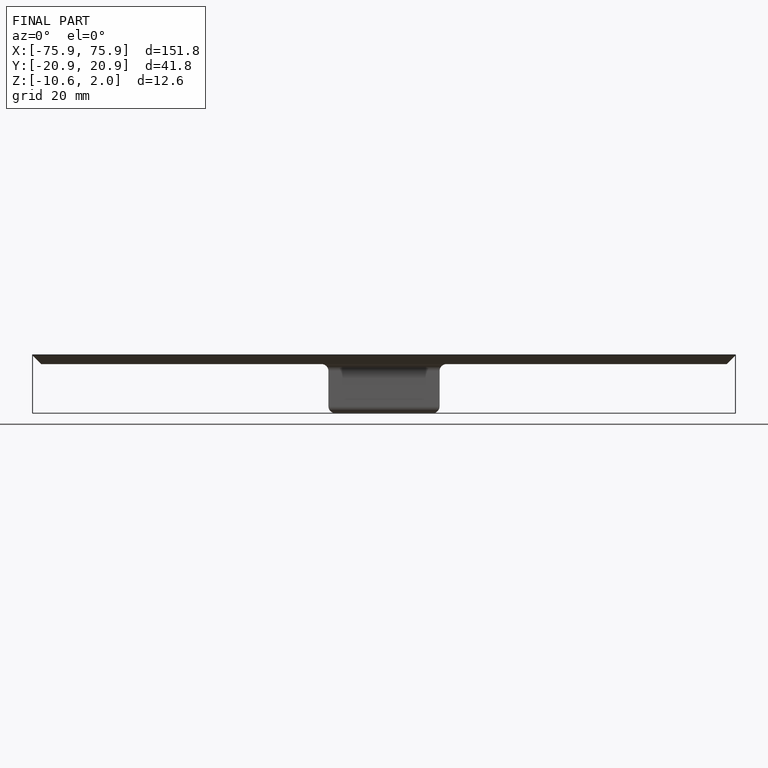
[diagram: finished part — front view with bounding-box wireframe]
